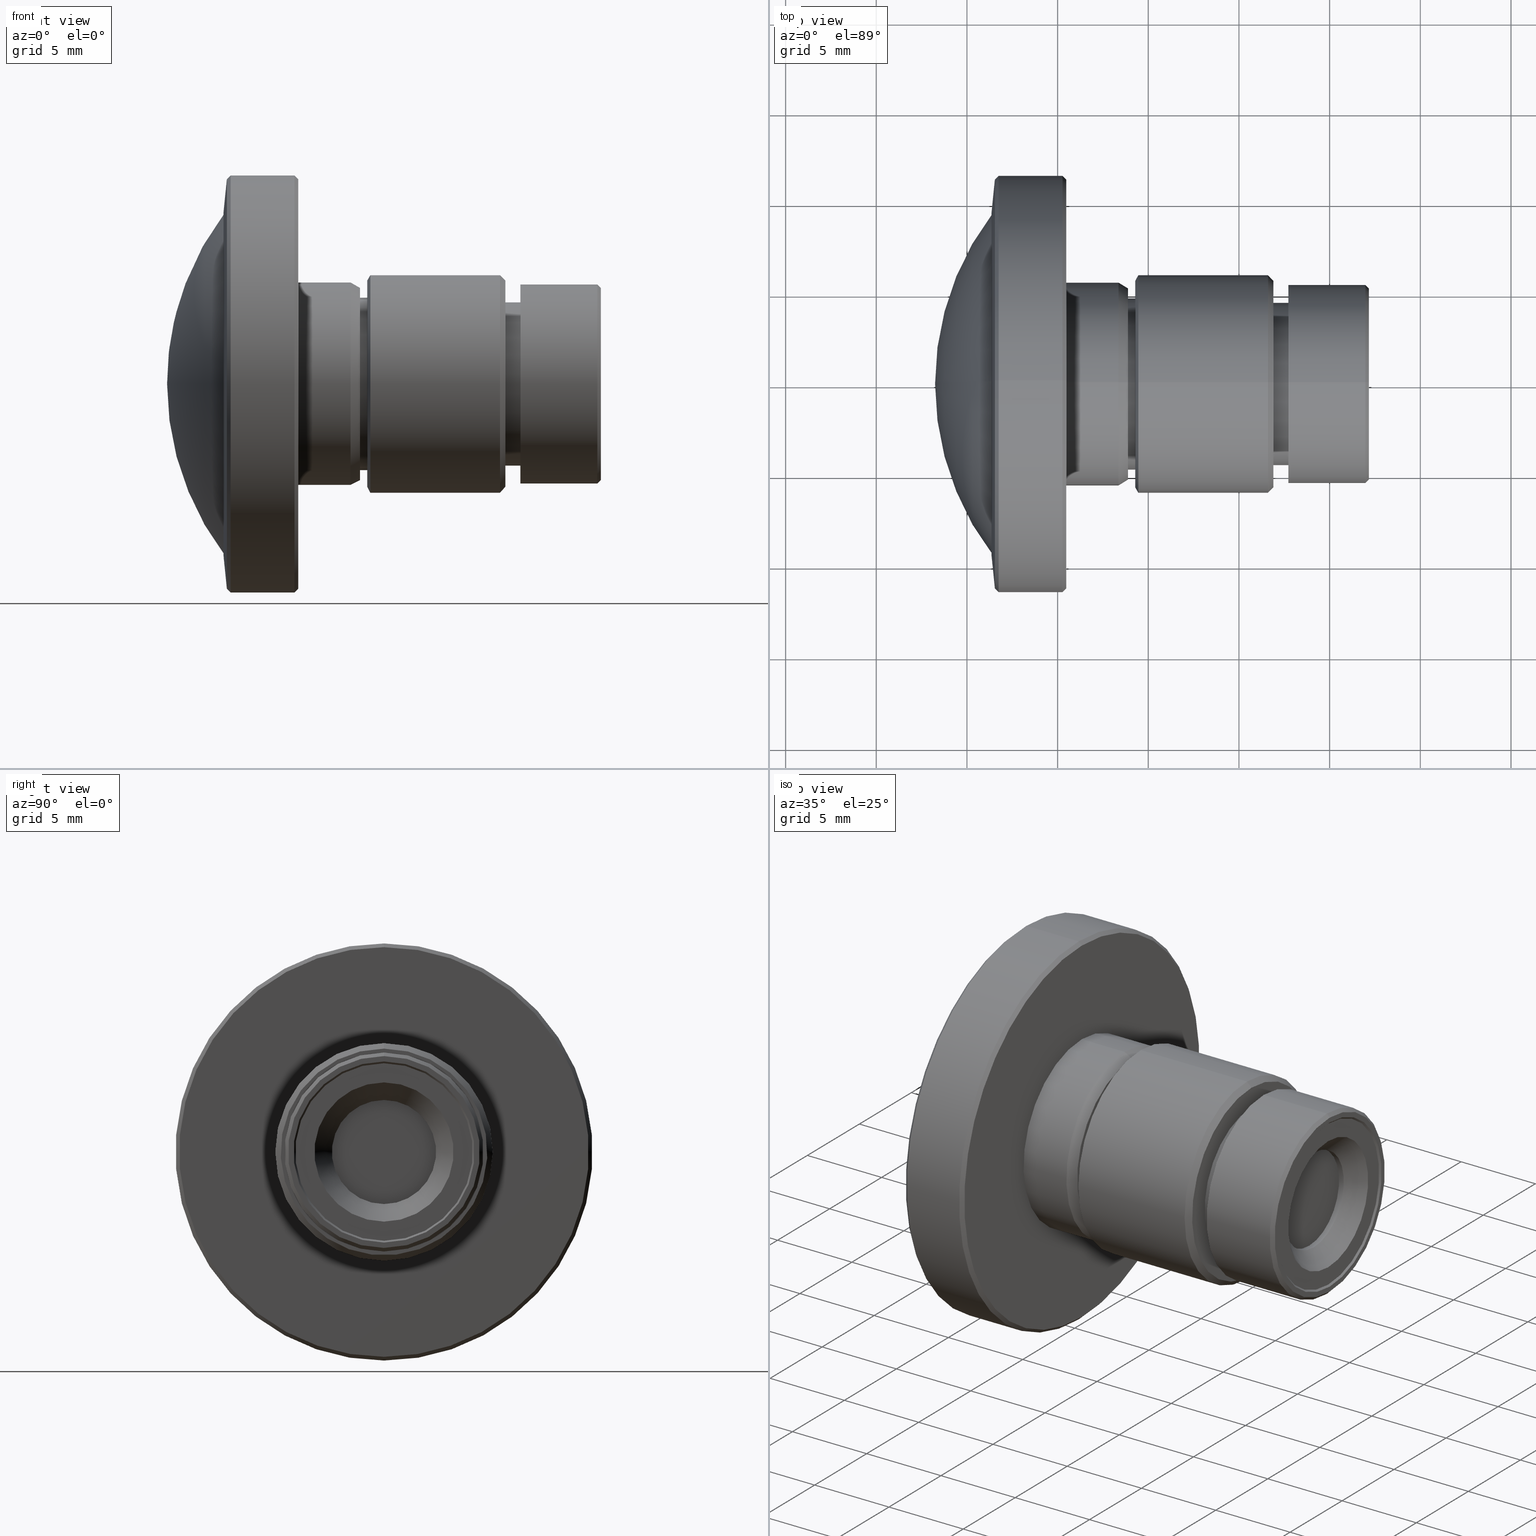
[diagram: canonical four-view strip — front | top / right | iso, engineering-drawing reading convention]
A machine part, canonical four-view strip (front | top / right | iso — engineering-drawing reading convention). The complete STEP part file that produces these views, byte-faithful:
ISO-10303-21;
HEADER;
/* Generated by software containing ST-Developer
 * from STEP Tools, Inc. (www.steptools.com) 
 */
/* OPTION: strings as raw bytes, not using required /X/ escapes */

FILE_DESCRIPTION(
/* description */ ('Unknown'),
/* implementation_level */ '2;1');

FILE_NAME(
/* name */ 'E1628KF3RY_20210604',
/* time_stamp */ '2021-06-04T10:56:13+09:00',
/* author */ ('Unknown'),
/* organization */ ('Unknown'),
/* preprocessor_version */ 'ST-DEVELOPER v16.7',
/* originating_system */ 'DEX',
/* authorisation */ $);

FILE_SCHEMA (('AUTOMOTIVE_DESIGN {1 0 10303 214 3 1 1}'));
ENDSEC;

DATA;
#10=PROPERTY_DEFINITION_REPRESENTATION(#14,#12);
#11=PROPERTY_DEFINITION_REPRESENTATION(#15,#13);
#12=REPRESENTATION('',(#16),#719);
#13=REPRESENTATION('',(#17),#719);
#14=PROPERTY_DEFINITION('pmi validation property','',#724);
#15=PROPERTY_DEFINITION('pmi validation property','',#724);
#16=VALUE_REPRESENTATION_ITEM('number of annotations',COUNT_MEASURE(0.));
#17=VALUE_REPRESENTATION_ITEM('number of views',COUNT_MEASURE(0.));
#18=SHAPE_REPRESENTATION_RELATIONSHIP('','',#484,#19);
#19=ADVANCED_BREP_SHAPE_REPRESENTATION('',(#482),#719);
#20=CONICAL_SURFACE('',#498,4.89479075012357,0.785398163397365);
#21=CONICAL_SURFACE('',#502,5.28954075012367,0.785398163397466);
#22=CONICAL_SURFACE('',#512,5.70000000000002,0.785398163397506);
#23=CONICAL_SURFACE('',#516,6.00000000000003,1.04719755119669);
#24=CONICAL_SURFACE('',#524,5.30000000000001,0.523598775598295);
#25=CONICAL_SURFACE('',#530,11.2942484089188,0.785398163397566);
#26=CONICAL_SURFACE('',#534,11.5,0.785398163397498);
#27=CONICAL_SURFACE('',#536,11.2889273170655,1.46995995139877);
#28=DEGENERATE_TOROIDAL_SURFACE('',#494,532.216418151621,760.123939058977,
 .F.);
#29=PLANE('',#490);
#30=PLANE('',#496);
#31=PLANE('',#500);
#32=PLANE('',#506);
#33=PLANE('',#510);
#34=PLANE('',#518);
#35=PLANE('',#522);
#36=PLANE('',#528);
#37=SPHERICAL_SURFACE('',#489,15.597);
#38=ORIENTED_EDGE('',*,*,#88,.F.);
#39=ORIENTED_EDGE('',*,*,#89,.T.);
#40=ORIENTED_EDGE('',*,*,#88,.T.);
#41=ORIENTED_EDGE('',*,*,#90,.F.);
#42=ORIENTED_EDGE('',*,*,#91,.F.);
#43=ORIENTED_EDGE('',*,*,#90,.T.);
#44=ORIENTED_EDGE('',*,*,#92,.F.);
#45=ORIENTED_EDGE('',*,*,#91,.T.);
#46=ORIENTED_EDGE('',*,*,#93,.F.);
#47=ORIENTED_EDGE('',*,*,#92,.T.);
#48=ORIENTED_EDGE('',*,*,#94,.F.);
#49=ORIENTED_EDGE('',*,*,#93,.T.);
#50=ORIENTED_EDGE('',*,*,#95,.F.);
#51=ORIENTED_EDGE('',*,*,#94,.T.);
#52=ORIENTED_EDGE('',*,*,#96,.F.);
#53=ORIENTED_EDGE('',*,*,#95,.T.);
#54=ORIENTED_EDGE('',*,*,#97,.F.);
#55=ORIENTED_EDGE('',*,*,#96,.T.);
#56=ORIENTED_EDGE('',*,*,#98,.F.);
#57=ORIENTED_EDGE('',*,*,#97,.T.);
#58=ORIENTED_EDGE('',*,*,#99,.F.);
#59=ORIENTED_EDGE('',*,*,#98,.T.);
#60=ORIENTED_EDGE('',*,*,#100,.F.);
#61=ORIENTED_EDGE('',*,*,#99,.T.);
#62=ORIENTED_EDGE('',*,*,#101,.F.);
#63=ORIENTED_EDGE('',*,*,#100,.T.);
#64=ORIENTED_EDGE('',*,*,#102,.F.);
#65=ORIENTED_EDGE('',*,*,#101,.T.);
#66=ORIENTED_EDGE('',*,*,#103,.F.);
#67=ORIENTED_EDGE('',*,*,#102,.T.);
#68=ORIENTED_EDGE('',*,*,#104,.F.);
#69=ORIENTED_EDGE('',*,*,#103,.T.);
#70=ORIENTED_EDGE('',*,*,#105,.F.);
#71=ORIENTED_EDGE('',*,*,#104,.T.);
#72=ORIENTED_EDGE('',*,*,#106,.F.);
#73=ORIENTED_EDGE('',*,*,#105,.T.);
#74=ORIENTED_EDGE('',*,*,#107,.F.);
#75=ORIENTED_EDGE('',*,*,#106,.T.);
#76=ORIENTED_EDGE('',*,*,#108,.F.);
#77=ORIENTED_EDGE('',*,*,#107,.T.);
#78=ORIENTED_EDGE('',*,*,#109,.F.);
#79=ORIENTED_EDGE('',*,*,#108,.T.);
#80=ORIENTED_EDGE('',*,*,#110,.F.);
#81=ORIENTED_EDGE('',*,*,#109,.T.);
#82=ORIENTED_EDGE('',*,*,#111,.F.);
#83=ORIENTED_EDGE('',*,*,#110,.T.);
#84=ORIENTED_EDGE('',*,*,#112,.F.);
#85=ORIENTED_EDGE('',*,*,#111,.T.);
#86=ORIENTED_EDGE('',*,*,#89,.F.);
#87=ORIENTED_EDGE('',*,*,#112,.T.);
#88=EDGE_CURVE('',#113,#113,#138,.T.);
#89=EDGE_CURVE('',#114,#114,#139,.T.);
#90=EDGE_CURVE('',#115,#115,#140,.T.);
#91=EDGE_CURVE('',#116,#116,#141,.T.);
#92=EDGE_CURVE('',#117,#117,#142,.T.);
#93=EDGE_CURVE('',#118,#118,#143,.T.);
#94=EDGE_CURVE('',#119,#119,#144,.T.);
#95=EDGE_CURVE('',#120,#120,#145,.T.);
#96=EDGE_CURVE('',#121,#121,#146,.T.);
#97=EDGE_CURVE('',#122,#122,#147,.T.);
#98=EDGE_CURVE('',#123,#123,#148,.T.);
#99=EDGE_CURVE('',#124,#124,#149,.T.);
#100=EDGE_CURVE('',#125,#125,#150,.T.);
#101=EDGE_CURVE('',#126,#126,#151,.T.);
#102=EDGE_CURVE('',#127,#127,#152,.T.);
#103=EDGE_CURVE('',#128,#128,#153,.T.);
#104=EDGE_CURVE('',#129,#129,#154,.T.);
#105=EDGE_CURVE('',#130,#130,#155,.T.);
#106=EDGE_CURVE('',#131,#131,#156,.T.);
#107=EDGE_CURVE('',#132,#132,#157,.T.);
#108=EDGE_CURVE('',#133,#133,#158,.T.);
#109=EDGE_CURVE('',#134,#134,#159,.T.);
#110=EDGE_CURVE('',#135,#135,#160,.T.);
#111=EDGE_CURVE('',#136,#136,#161,.T.);
#112=EDGE_CURVE('',#137,#137,#162,.T.);
#113=VERTEX_POINT('',#644);
#114=VERTEX_POINT('',#646);
#115=VERTEX_POINT('',#650);
#116=VERTEX_POINT('',#653);
#117=VERTEX_POINT('',#656);
#118=VERTEX_POINT('',#659);
#119=VERTEX_POINT('',#662);
#120=VERTEX_POINT('',#665);
#121=VERTEX_POINT('',#668);
#122=VERTEX_POINT('',#671);
#123=VERTEX_POINT('',#674);
#124=VERTEX_POINT('',#677);
#125=VERTEX_POINT('',#680);
#126=VERTEX_POINT('',#683);
#127=VERTEX_POINT('',#686);
#128=VERTEX_POINT('',#689);
#129=VERTEX_POINT('',#692);
#130=VERTEX_POINT('',#695);
#131=VERTEX_POINT('',#698);
#132=VERTEX_POINT('',#701);
#133=VERTEX_POINT('',#704);
#134=VERTEX_POINT('',#707);
#135=VERTEX_POINT('',#710);
#136=VERTEX_POINT('',#713);
#137=VERTEX_POINT('',#716);
#138=CIRCLE('',#487,9.45000000000003);
#139=CIRCLE('',#488,9.45000000000003);
#140=CIRCLE('',#491,2.87169700012366);
#141=CIRCLE('',#493,2.87169700012366);
#142=CIRCLE('',#495,3.83800986708638);
#143=CIRCLE('',#497,4.89479075012357);
#144=CIRCLE('',#499,4.99347825012363);
#145=CIRCLE('',#501,5.28954075012367);
#146=CIRCLE('',#503,5.48691575012368);
#147=CIRCLE('',#505,5.48691575012368);
#148=CIRCLE('',#507,4.49999999999999);
#149=CIRCLE('',#509,4.49999999999999);
#150=CIRCLE('',#511,5.70000000000002);
#151=CIRCLE('',#513,6.00000000000002);
#152=CIRCLE('',#515,6.00000000000003);
#153=CIRCLE('',#517,5.70000000000002);
#154=CIRCLE('',#519,4.74999999999999);
#155=CIRCLE('',#521,4.75);
#156=CIRCLE('',#523,5.30000000000001);
#157=CIRCLE('',#525,5.60000000000001);
#158=CIRCLE('',#527,5.60000000000001);
#159=CIRCLE('',#529,11.2942484089188);
#160=CIRCLE('',#531,11.5);
#161=CIRCLE('',#533,11.5);
#162=CIRCLE('',#535,11.2889273170655);
#163=EDGE_LOOP('',(#38));
#164=EDGE_LOOP('',(#39));
#165=EDGE_LOOP('',(#40));
#166=EDGE_LOOP('',(#41));
#167=EDGE_LOOP('',(#42));
#168=EDGE_LOOP('',(#43));
#169=EDGE_LOOP('',(#44));
#170=EDGE_LOOP('',(#45));
#171=EDGE_LOOP('',(#46));
#172=EDGE_LOOP('',(#47));
#173=EDGE_LOOP('',(#48));
#174=EDGE_LOOP('',(#49));
#175=EDGE_LOOP('',(#50));
#176=EDGE_LOOP('',(#51));
#177=EDGE_LOOP('',(#52));
#178=EDGE_LOOP('',(#53));
#179=EDGE_LOOP('',(#54));
#180=EDGE_LOOP('',(#55));
#181=EDGE_LOOP('',(#56));
#182=EDGE_LOOP('',(#57));
#183=EDGE_LOOP('',(#58));
#184=EDGE_LOOP('',(#59));
#185=EDGE_LOOP('',(#60));
#186=EDGE_LOOP('',(#61));
#187=EDGE_LOOP('',(#62));
#188=EDGE_LOOP('',(#63));
#189=EDGE_LOOP('',(#64));
#190=EDGE_LOOP('',(#65));
#191=EDGE_LOOP('',(#66));
#192=EDGE_LOOP('',(#67));
#193=EDGE_LOOP('',(#68));
#194=EDGE_LOOP('',(#69));
#195=EDGE_LOOP('',(#70));
#196=EDGE_LOOP('',(#71));
#197=EDGE_LOOP('',(#72));
#198=EDGE_LOOP('',(#73));
#199=EDGE_LOOP('',(#74));
#200=EDGE_LOOP('',(#75));
#201=EDGE_LOOP('',(#76));
#202=EDGE_LOOP('',(#77));
#203=EDGE_LOOP('',(#78));
#204=EDGE_LOOP('',(#79));
#205=EDGE_LOOP('',(#80));
#206=EDGE_LOOP('',(#81));
#207=EDGE_LOOP('',(#82));
#208=EDGE_LOOP('',(#83));
#209=EDGE_LOOP('',(#84));
#210=EDGE_LOOP('',(#85));
#211=EDGE_LOOP('',(#86));
#212=EDGE_LOOP('',(#87));
#213=FACE_BOUND('',#163,.T.);
#214=FACE_BOUND('',#164,.T.);
#215=FACE_BOUND('',#165,.T.);
#216=FACE_BOUND('',#166,.T.);
#217=FACE_BOUND('',#167,.T.);
#218=FACE_BOUND('',#168,.T.);
#219=FACE_BOUND('',#169,.T.);
#220=FACE_BOUND('',#170,.T.);
#221=FACE_BOUND('',#171,.T.);
#222=FACE_BOUND('',#172,.T.);
#223=FACE_BOUND('',#173,.T.);
#224=FACE_BOUND('',#174,.T.);
#225=FACE_BOUND('',#175,.T.);
#226=FACE_BOUND('',#176,.T.);
#227=FACE_BOUND('',#177,.T.);
#228=FACE_BOUND('',#178,.T.);
#229=FACE_BOUND('',#179,.T.);
#230=FACE_BOUND('',#180,.T.);
#231=FACE_BOUND('',#181,.T.);
#232=FACE_BOUND('',#182,.T.);
#233=FACE_BOUND('',#183,.T.);
#234=FACE_BOUND('',#184,.T.);
#235=FACE_BOUND('',#185,.T.);
#236=FACE_BOUND('',#186,.T.);
#237=FACE_BOUND('',#187,.T.);
#238=FACE_BOUND('',#188,.T.);
#239=FACE_BOUND('',#189,.T.);
#240=FACE_BOUND('',#190,.T.);
#241=FACE_BOUND('',#191,.T.);
#242=FACE_BOUND('',#192,.T.);
#243=FACE_BOUND('',#193,.T.);
#244=FACE_BOUND('',#194,.T.);
#245=FACE_BOUND('',#195,.T.);
#246=FACE_BOUND('',#196,.T.);
#247=FACE_BOUND('',#197,.T.);
#248=FACE_BOUND('',#198,.T.);
#249=FACE_BOUND('',#199,.T.);
#250=FACE_BOUND('',#200,.T.);
#251=FACE_BOUND('',#201,.T.);
#252=FACE_BOUND('',#202,.T.);
#253=FACE_BOUND('',#203,.T.);
#254=FACE_BOUND('',#204,.T.);
#255=FACE_BOUND('',#205,.T.);
#256=FACE_BOUND('',#206,.T.);
#257=FACE_BOUND('',#207,.T.);
#258=FACE_BOUND('',#208,.T.);
#259=FACE_BOUND('',#209,.T.);
#260=FACE_BOUND('',#210,.T.);
#261=FACE_BOUND('',#211,.T.);
#262=FACE_BOUND('',#212,.T.);
#263=CYLINDRICAL_SURFACE('',#486,9.45000000000003);
#264=CYLINDRICAL_SURFACE('',#492,2.87169700012366);
#265=CYLINDRICAL_SURFACE('',#504,5.48691575012368);
#266=CYLINDRICAL_SURFACE('',#508,4.49999999999999);
#267=CYLINDRICAL_SURFACE('',#514,6.00000000000003);
#268=CYLINDRICAL_SURFACE('',#520,4.75);
#269=CYLINDRICAL_SURFACE('',#526,5.60000000000001);
#270=CYLINDRICAL_SURFACE('',#532,11.5);
#271=STYLED_ITEM('',(#297),#455);
#272=STYLED_ITEM('',(#298),#456);
#273=STYLED_ITEM('',(#299),#457);
#274=STYLED_ITEM('',(#300),#458);
#275=STYLED_ITEM('',(#301),#459);
#276=STYLED_ITEM('',(#302),#460);
#277=STYLED_ITEM('',(#303),#461);
#278=STYLED_ITEM('',(#304),#462);
#279=STYLED_ITEM('',(#305),#463);
#280=STYLED_ITEM('',(#306),#464);
#281=STYLED_ITEM('',(#307),#465);
#282=STYLED_ITEM('',(#308),#466);
#283=STYLED_ITEM('',(#309),#467);
#284=STYLED_ITEM('',(#310),#468);
#285=STYLED_ITEM('',(#311),#469);
#286=STYLED_ITEM('',(#312),#470);
#287=STYLED_ITEM('',(#313),#471);
#288=STYLED_ITEM('',(#314),#472);
#289=STYLED_ITEM('',(#315),#473);
#290=STYLED_ITEM('',(#316),#474);
#291=STYLED_ITEM('',(#317),#475);
#292=STYLED_ITEM('',(#318),#476);
#293=STYLED_ITEM('',(#319),#477);
#294=STYLED_ITEM('',(#320),#478);
#295=STYLED_ITEM('',(#321),#479);
#296=STYLED_ITEM('',(#322),#480);
#297=PRESENTATION_STYLE_ASSIGNMENT((#323));
#298=PRESENTATION_STYLE_ASSIGNMENT((#324));
#299=PRESENTATION_STYLE_ASSIGNMENT((#325));
#300=PRESENTATION_STYLE_ASSIGNMENT((#326));
#301=PRESENTATION_STYLE_ASSIGNMENT((#327));
#302=PRESENTATION_STYLE_ASSIGNMENT((#328));
#303=PRESENTATION_STYLE_ASSIGNMENT((#329));
#304=PRESENTATION_STYLE_ASSIGNMENT((#330));
#305=PRESENTATION_STYLE_ASSIGNMENT((#331));
#306=PRESENTATION_STYLE_ASSIGNMENT((#332));
#307=PRESENTATION_STYLE_ASSIGNMENT((#333));
#308=PRESENTATION_STYLE_ASSIGNMENT((#334));
#309=PRESENTATION_STYLE_ASSIGNMENT((#335));
#310=PRESENTATION_STYLE_ASSIGNMENT((#336));
#311=PRESENTATION_STYLE_ASSIGNMENT((#337));
#312=PRESENTATION_STYLE_ASSIGNMENT((#338));
#313=PRESENTATION_STYLE_ASSIGNMENT((#339));
#314=PRESENTATION_STYLE_ASSIGNMENT((#340));
#315=PRESENTATION_STYLE_ASSIGNMENT((#341));
#316=PRESENTATION_STYLE_ASSIGNMENT((#342));
#317=PRESENTATION_STYLE_ASSIGNMENT((#343));
#318=PRESENTATION_STYLE_ASSIGNMENT((#344));
#319=PRESENTATION_STYLE_ASSIGNMENT((#345));
#320=PRESENTATION_STYLE_ASSIGNMENT((#346));
#321=PRESENTATION_STYLE_ASSIGNMENT((#347));
#322=PRESENTATION_STYLE_ASSIGNMENT((#348));
#323=SURFACE_STYLE_USAGE(.BOTH.,#349);
#324=SURFACE_STYLE_USAGE(.BOTH.,#350);
#325=SURFACE_STYLE_USAGE(.BOTH.,#351);
#326=SURFACE_STYLE_USAGE(.BOTH.,#352);
#327=SURFACE_STYLE_USAGE(.BOTH.,#353);
#328=SURFACE_STYLE_USAGE(.BOTH.,#354);
#329=SURFACE_STYLE_USAGE(.BOTH.,#355);
#330=SURFACE_STYLE_USAGE(.BOTH.,#356);
#331=SURFACE_STYLE_USAGE(.BOTH.,#357);
#332=SURFACE_STYLE_USAGE(.BOTH.,#358);
#333=SURFACE_STYLE_USAGE(.BOTH.,#359);
#334=SURFACE_STYLE_USAGE(.BOTH.,#360);
#335=SURFACE_STYLE_USAGE(.BOTH.,#361);
#336=SURFACE_STYLE_USAGE(.BOTH.,#362);
#337=SURFACE_STYLE_USAGE(.BOTH.,#363);
#338=SURFACE_STYLE_USAGE(.BOTH.,#364);
#339=SURFACE_STYLE_USAGE(.BOTH.,#365);
#340=SURFACE_STYLE_USAGE(.BOTH.,#366);
#341=SURFACE_STYLE_USAGE(.BOTH.,#367);
#342=SURFACE_STYLE_USAGE(.BOTH.,#368);
#343=SURFACE_STYLE_USAGE(.BOTH.,#369);
#344=SURFACE_STYLE_USAGE(.BOTH.,#370);
#345=SURFACE_STYLE_USAGE(.BOTH.,#371);
#346=SURFACE_STYLE_USAGE(.BOTH.,#372);
#347=SURFACE_STYLE_USAGE(.BOTH.,#373);
#348=SURFACE_STYLE_USAGE(.BOTH.,#374);
#349=SURFACE_SIDE_STYLE('',(#375));
#350=SURFACE_SIDE_STYLE('',(#376));
#351=SURFACE_SIDE_STYLE('',(#377));
#352=SURFACE_SIDE_STYLE('',(#378));
#353=SURFACE_SIDE_STYLE('',(#379));
#354=SURFACE_SIDE_STYLE('',(#380));
#355=SURFACE_SIDE_STYLE('',(#381));
#356=SURFACE_SIDE_STYLE('',(#382));
#357=SURFACE_SIDE_STYLE('',(#383));
#358=SURFACE_SIDE_STYLE('',(#384));
#359=SURFACE_SIDE_STYLE('',(#385));
#360=SURFACE_SIDE_STYLE('',(#386));
#361=SURFACE_SIDE_STYLE('',(#387));
#362=SURFACE_SIDE_STYLE('',(#388));
#363=SURFACE_SIDE_STYLE('',(#389));
#364=SURFACE_SIDE_STYLE('',(#390));
#365=SURFACE_SIDE_STYLE('',(#391));
#366=SURFACE_SIDE_STYLE('',(#392));
#367=SURFACE_SIDE_STYLE('',(#393));
#368=SURFACE_SIDE_STYLE('',(#394));
#369=SURFACE_SIDE_STYLE('',(#395));
#370=SURFACE_SIDE_STYLE('',(#396));
#371=SURFACE_SIDE_STYLE('',(#397));
#372=SURFACE_SIDE_STYLE('',(#398));
#373=SURFACE_SIDE_STYLE('',(#399));
#374=SURFACE_SIDE_STYLE('',(#400));
#375=SURFACE_STYLE_FILL_AREA(#401);
#376=SURFACE_STYLE_FILL_AREA(#402);
#377=SURFACE_STYLE_FILL_AREA(#403);
#378=SURFACE_STYLE_FILL_AREA(#404);
#379=SURFACE_STYLE_FILL_AREA(#405);
#380=SURFACE_STYLE_FILL_AREA(#406);
#381=SURFACE_STYLE_FILL_AREA(#407);
#382=SURFACE_STYLE_FILL_AREA(#408);
#383=SURFACE_STYLE_FILL_AREA(#409);
#384=SURFACE_STYLE_FILL_AREA(#410);
#385=SURFACE_STYLE_FILL_AREA(#411);
#386=SURFACE_STYLE_FILL_AREA(#412);
#387=SURFACE_STYLE_FILL_AREA(#413);
#388=SURFACE_STYLE_FILL_AREA(#414);
#389=SURFACE_STYLE_FILL_AREA(#415);
#390=SURFACE_STYLE_FILL_AREA(#416);
#391=SURFACE_STYLE_FILL_AREA(#417);
#392=SURFACE_STYLE_FILL_AREA(#418);
#393=SURFACE_STYLE_FILL_AREA(#419);
#394=SURFACE_STYLE_FILL_AREA(#420);
#395=SURFACE_STYLE_FILL_AREA(#421);
#396=SURFACE_STYLE_FILL_AREA(#422);
#397=SURFACE_STYLE_FILL_AREA(#423);
#398=SURFACE_STYLE_FILL_AREA(#424);
#399=SURFACE_STYLE_FILL_AREA(#425);
#400=SURFACE_STYLE_FILL_AREA(#426);
#401=FILL_AREA_STYLE('',(#427));
#402=FILL_AREA_STYLE('',(#428));
#403=FILL_AREA_STYLE('',(#429));
#404=FILL_AREA_STYLE('',(#430));
#405=FILL_AREA_STYLE('',(#431));
#406=FILL_AREA_STYLE('',(#432));
#407=FILL_AREA_STYLE('',(#433));
#408=FILL_AREA_STYLE('',(#434));
#409=FILL_AREA_STYLE('',(#435));
#410=FILL_AREA_STYLE('',(#436));
#411=FILL_AREA_STYLE('',(#437));
#412=FILL_AREA_STYLE('',(#438));
#413=FILL_AREA_STYLE('',(#439));
#414=FILL_AREA_STYLE('',(#440));
#415=FILL_AREA_STYLE('',(#441));
#416=FILL_AREA_STYLE('',(#442));
#417=FILL_AREA_STYLE('',(#443));
#418=FILL_AREA_STYLE('',(#444));
#419=FILL_AREA_STYLE('',(#445));
#420=FILL_AREA_STYLE('',(#446));
#421=FILL_AREA_STYLE('',(#447));
#422=FILL_AREA_STYLE('',(#448));
#423=FILL_AREA_STYLE('',(#449));
#424=FILL_AREA_STYLE('',(#450));
#425=FILL_AREA_STYLE('',(#451));
#426=FILL_AREA_STYLE('',(#452));
#427=FILL_AREA_STYLE_COLOUR('',#453);
#428=FILL_AREA_STYLE_COLOUR('',#454);
#429=FILL_AREA_STYLE_COLOUR('',#454);
#430=FILL_AREA_STYLE_COLOUR('',#453);
#431=FILL_AREA_STYLE_COLOUR('',#453);
#432=FILL_AREA_STYLE_COLOUR('',#453);
#433=FILL_AREA_STYLE_COLOUR('',#453);
#434=FILL_AREA_STYLE_COLOUR('',#453);
#435=FILL_AREA_STYLE_COLOUR('',#453);
#436=FILL_AREA_STYLE_COLOUR('',#453);
#437=FILL_AREA_STYLE_COLOUR('',#453);
#438=FILL_AREA_STYLE_COLOUR('',#453);
#439=FILL_AREA_STYLE_COLOUR('',#453);
#440=FILL_AREA_STYLE_COLOUR('',#453);
#441=FILL_AREA_STYLE_COLOUR('',#453);
#442=FILL_AREA_STYLE_COLOUR('',#453);
#443=FILL_AREA_STYLE_COLOUR('',#453);
#444=FILL_AREA_STYLE_COLOUR('',#453);
#445=FILL_AREA_STYLE_COLOUR('',#453);
#446=FILL_AREA_STYLE_COLOUR('',#453);
#447=FILL_AREA_STYLE_COLOUR('',#453);
#448=FILL_AREA_STYLE_COLOUR('',#453);
#449=FILL_AREA_STYLE_COLOUR('',#453);
#450=FILL_AREA_STYLE_COLOUR('',#453);
#451=FILL_AREA_STYLE_COLOUR('',#453);
#452=FILL_AREA_STYLE_COLOUR('',#453);
#453=COLOUR_RGB('',0.200000002980232,0.200000002980232,0.200000002980232);
#454=COLOUR_RGB('',0.39215686917305,0.600000023841858,0.39215686917305);
#455=ADVANCED_FACE('',(#213,#214),#263,.F.);
#456=ADVANCED_FACE('',(#215),#37,.T.);
#457=ADVANCED_FACE('',(#216),#29,.F.);
#458=ADVANCED_FACE('',(#217,#218),#264,.F.);
#459=ADVANCED_FACE('',(#219,#220),#28,.T.);
#460=ADVANCED_FACE('',(#221,#222),#30,.F.);
#461=ADVANCED_FACE('',(#223,#224),#20,.F.);
#462=ADVANCED_FACE('',(#225,#226),#31,.F.);
#463=ADVANCED_FACE('',(#227,#228),#21,.T.);
#464=ADVANCED_FACE('',(#229,#230),#265,.T.);
#465=ADVANCED_FACE('',(#231,#232),#32,.F.);
#466=ADVANCED_FACE('',(#233,#234),#266,.T.);
#467=ADVANCED_FACE('',(#235,#236),#33,.F.);
#468=ADVANCED_FACE('',(#237,#238),#22,.T.);
#469=ADVANCED_FACE('',(#239,#240),#267,.T.);
#470=ADVANCED_FACE('',(#241,#242),#23,.T.);
#471=ADVANCED_FACE('',(#243,#244),#34,.F.);
#472=ADVANCED_FACE('',(#245,#246),#268,.T.);
#473=ADVANCED_FACE('',(#247,#248),#35,.F.);
#474=ADVANCED_FACE('',(#249,#250),#24,.T.);
#475=ADVANCED_FACE('',(#251,#252),#269,.T.);
#476=ADVANCED_FACE('',(#253,#254),#36,.F.);
#477=ADVANCED_FACE('',(#255,#256),#25,.T.);
#478=ADVANCED_FACE('',(#257,#258),#270,.T.);
#479=ADVANCED_FACE('',(#259,#260),#26,.T.);
#480=ADVANCED_FACE('',(#261,#262),#27,.T.);
#481=CLOSED_SHELL('',(#455,#456,#457,#458,#459,#460,#461,#462,#463,#464,
#465,#466,#467,#468,#469,#470,#471,#472,#473,#474,#475,#476,#477,#478,#479,
#480));
#482=MANIFOLD_SOLID_BREP('',#481);
#483=SHAPE_DEFINITION_REPRESENTATION(#724,#484);
#484=SHAPE_REPRESENTATION('TLB-2000-IRCF_20210604',(#485),#719);
#485=AXIS2_PLACEMENT_3D('',#641,#537,#538);
#486=AXIS2_PLACEMENT_3D('',#642,#539,#540);
#487=AXIS2_PLACEMENT_3D('',#643,#541,#542);
#488=AXIS2_PLACEMENT_3D('',#645,#543,#544);
#489=AXIS2_PLACEMENT_3D('',#647,#545,#546);
#490=AXIS2_PLACEMENT_3D('',#648,#547,#548);
#491=AXIS2_PLACEMENT_3D('',#649,#549,#550);
#492=AXIS2_PLACEMENT_3D('',#651,#551,#552);
#493=AXIS2_PLACEMENT_3D('',#652,#553,#554);
#494=AXIS2_PLACEMENT_3D('',#654,#555,#556);
#495=AXIS2_PLACEMENT_3D('',#655,#557,#558);
#496=AXIS2_PLACEMENT_3D('',#657,#559,#560);
#497=AXIS2_PLACEMENT_3D('',#658,#561,#562);
#498=AXIS2_PLACEMENT_3D('',#660,#563,#564);
#499=AXIS2_PLACEMENT_3D('',#661,#565,#566);
#500=AXIS2_PLACEMENT_3D('',#663,#567,#568);
#501=AXIS2_PLACEMENT_3D('',#664,#569,#570);
#502=AXIS2_PLACEMENT_3D('',#666,#571,#572);
#503=AXIS2_PLACEMENT_3D('',#667,#573,#574);
#504=AXIS2_PLACEMENT_3D('',#669,#575,#576);
#505=AXIS2_PLACEMENT_3D('',#670,#577,#578);
#506=AXIS2_PLACEMENT_3D('',#672,#579,#580);
#507=AXIS2_PLACEMENT_3D('',#673,#581,#582);
#508=AXIS2_PLACEMENT_3D('',#675,#583,#584);
#509=AXIS2_PLACEMENT_3D('',#676,#585,#586);
#510=AXIS2_PLACEMENT_3D('',#678,#587,#588);
#511=AXIS2_PLACEMENT_3D('',#679,#589,#590);
#512=AXIS2_PLACEMENT_3D('',#681,#591,#592);
#513=AXIS2_PLACEMENT_3D('',#682,#593,#594);
#514=AXIS2_PLACEMENT_3D('',#684,#595,#596);
#515=AXIS2_PLACEMENT_3D('',#685,#597,#598);
#516=AXIS2_PLACEMENT_3D('',#687,#599,#600);
#517=AXIS2_PLACEMENT_3D('',#688,#601,#602);
#518=AXIS2_PLACEMENT_3D('',#690,#603,#604);
#519=AXIS2_PLACEMENT_3D('',#691,#605,#606);
#520=AXIS2_PLACEMENT_3D('',#693,#607,#608);
#521=AXIS2_PLACEMENT_3D('',#694,#609,#610);
#522=AXIS2_PLACEMENT_3D('',#696,#611,#612);
#523=AXIS2_PLACEMENT_3D('',#697,#613,#614);
#524=AXIS2_PLACEMENT_3D('',#699,#615,#616);
#525=AXIS2_PLACEMENT_3D('',#700,#617,#618);
#526=AXIS2_PLACEMENT_3D('',#702,#619,#620);
#527=AXIS2_PLACEMENT_3D('',#703,#621,#622);
#528=AXIS2_PLACEMENT_3D('',#705,#623,#624);
#529=AXIS2_PLACEMENT_3D('',#706,#625,#626);
#530=AXIS2_PLACEMENT_3D('',#708,#627,#628);
#531=AXIS2_PLACEMENT_3D('',#709,#629,#630);
#532=AXIS2_PLACEMENT_3D('',#711,#631,#632);
#533=AXIS2_PLACEMENT_3D('',#712,#633,#634);
#534=AXIS2_PLACEMENT_3D('',#714,#635,#636);
#535=AXIS2_PLACEMENT_3D('',#715,#637,#638);
#536=AXIS2_PLACEMENT_3D('',#717,#639,#640);
#537=DIRECTION('',(0.,0.,1.));
#538=DIRECTION('',(1.,0.,0.));
#539=DIRECTION('',(-1.,0.,0.));
#540=DIRECTION('',(0.,0.,1.));
#541=DIRECTION('',(-1.,0.,0.));
#542=DIRECTION('',(0.,0.,1.));
#543=DIRECTION('',(-1.,0.,0.));
#544=DIRECTION('',(0.,0.,1.));
#545=DIRECTION('',(-1.,0.,0.));
#546=DIRECTION('',(0.,0.,1.));
#547=DIRECTION('',(-1.,0.,0.));
#548=DIRECTION('',(0.,0.,1.));
#549=DIRECTION('',(-1.,0.,0.));
#550=DIRECTION('',(0.,0.,1.));
#551=DIRECTION('',(-1.,0.,0.));
#552=DIRECTION('',(0.,0.,1.));
#553=DIRECTION('',(-1.,0.,0.));
#554=DIRECTION('',(0.,0.,1.));
#555=DIRECTION('',(-1.,0.,0.));
#556=DIRECTION('',(0.,0.,1.));
#557=DIRECTION('',(-1.,0.,0.));
#558=DIRECTION('',(0.,0.,1.));
#559=DIRECTION('',(-1.,0.,0.));
#560=DIRECTION('',(0.,0.,1.));
#561=DIRECTION('',(-1.,0.,0.));
#562=DIRECTION('',(0.,0.,1.));
#563=DIRECTION('',(1.,0.,0.));
#564=DIRECTION('',(0.,0.,-1.));
#565=DIRECTION('',(-1.,0.,0.));
#566=DIRECTION('',(0.,0.,1.));
#567=DIRECTION('',(-1.,0.,0.));
#568=DIRECTION('',(0.,0.,1.));
#569=DIRECTION('',(-1.,0.,0.));
#570=DIRECTION('',(0.,0.,1.));
#571=DIRECTION('',(-1.,0.,0.));
#572=DIRECTION('',(0.,0.,1.));
#573=DIRECTION('',(-1.,0.,0.));
#574=DIRECTION('',(0.,0.,1.));
#575=DIRECTION('',(-1.,0.,0.));
#576=DIRECTION('',(0.,0.,1.));
#577=DIRECTION('',(-1.,0.,0.));
#578=DIRECTION('',(0.,0.,1.));
#579=DIRECTION('',(1.,0.,0.));
#580=DIRECTION('',(0.,0.,-1.));
#581=DIRECTION('',(-1.,0.,0.));
#582=DIRECTION('',(0.,0.,1.));
#583=DIRECTION('',(-1.,0.,0.));
#584=DIRECTION('',(0.,0.,1.));
#585=DIRECTION('',(-1.,0.,0.));
#586=DIRECTION('',(0.,0.,1.));
#587=DIRECTION('',(-1.,0.,0.));
#588=DIRECTION('',(0.,0.,1.));
#589=DIRECTION('',(-1.,0.,0.));
#590=DIRECTION('',(0.,0.,1.));
#591=DIRECTION('',(-1.,0.,0.));
#592=DIRECTION('',(0.,0.,1.));
#593=DIRECTION('',(-1.,0.,0.));
#594=DIRECTION('',(0.,0.,1.));
#595=DIRECTION('',(-1.,0.,0.));
#596=DIRECTION('',(0.,0.,1.));
#597=DIRECTION('',(-1.,0.,0.));
#598=DIRECTION('',(0.,0.,1.));
#599=DIRECTION('',(1.,0.,0.));
#600=DIRECTION('',(0.,0.,-1.));
#601=DIRECTION('',(-1.,0.,0.));
#602=DIRECTION('',(0.,0.,1.));
#603=DIRECTION('',(1.,0.,0.));
#604=DIRECTION('',(0.,0.,-1.));
#605=DIRECTION('',(-1.,0.,0.));
#606=DIRECTION('',(0.,0.,1.));
#607=DIRECTION('',(-1.,0.,0.));
#608=DIRECTION('',(0.,0.,1.));
#609=DIRECTION('',(-1.,0.,0.));
#610=DIRECTION('',(0.,0.,1.));
#611=DIRECTION('',(-1.,0.,0.));
#612=DIRECTION('',(0.,0.,1.));
#613=DIRECTION('',(-1.,0.,0.));
#614=DIRECTION('',(0.,0.,1.));
#615=DIRECTION('',(-1.,0.,0.));
#616=DIRECTION('',(0.,0.,1.));
#617=DIRECTION('',(-1.,0.,0.));
#618=DIRECTION('',(0.,0.,1.));
#619=DIRECTION('',(-1.,0.,0.));
#620=DIRECTION('',(0.,0.,1.));
#621=DIRECTION('',(-1.,0.,0.));
#622=DIRECTION('',(0.,0.,1.));
#623=DIRECTION('',(-1.,0.,0.));
#624=DIRECTION('',(0.,0.,1.));
#625=DIRECTION('',(-1.,0.,0.));
#626=DIRECTION('',(0.,0.,1.));
#627=DIRECTION('',(-1.,0.,0.));
#628=DIRECTION('',(0.,0.,1.));
#629=DIRECTION('',(-1.,0.,0.));
#630=DIRECTION('',(0.,0.,1.));
#631=DIRECTION('',(-1.,0.,0.));
#632=DIRECTION('',(0.,0.,1.));
#633=DIRECTION('',(-1.,0.,0.));
#634=DIRECTION('',(0.,0.,1.));
#635=DIRECTION('',(1.,0.,0.));
#636=DIRECTION('',(0.,0.,-1.));
#637=DIRECTION('',(-1.,0.,0.));
#638=DIRECTION('',(0.,0.,1.));
#639=DIRECTION('',(1.,0.,0.));
#640=DIRECTION('',(0.,0.,-1.));
#641=CARTESIAN_POINT('',(0.,0.,0.));
#642=CARTESIAN_POINT('',(-60.,0.,0.));
#643=CARTESIAN_POINT('',(-23.5682903184779,0.,0.));
#644=CARTESIAN_POINT('',(-23.5682903184779,0.,9.45000000000003));
#645=CARTESIAN_POINT('',(-23.6467166975532,0.,0.));
#646=CARTESIAN_POINT('',(-23.6467166975532,0.,9.45000000000003));
#647=CARTESIAN_POINT('',(-11.1600709055243,0.,3.46944695195361E-15));
#648=CARTESIAN_POINT('',(-4.21514651050595,0.,0.));
#649=CARTESIAN_POINT('',(-4.21514651050595,0.,0.));
#650=CARTESIAN_POINT('',(-4.21514651050595,0.,2.87169700012366));
#651=CARTESIAN_POINT('',(-60.,0.,0.));
#652=CARTESIAN_POINT('',(-3.89166402444915,0.,0.));
#653=CARTESIAN_POINT('',(-3.89166402444915,0.,2.87169700012366));
#654=CARTESIAN_POINT('',(535.987129552302,0.,0.));
#655=CARTESIAN_POINT('',(-2.93220850495446,0.,0.));
#656=CARTESIAN_POINT('',(-2.93220850495446,0.,3.83800986708638));
#657=CARTESIAN_POINT('',(-2.93220850495433,0.,4.89479075012357));
#658=CARTESIAN_POINT('',(-2.93220850495421,0.,0.));
#659=CARTESIAN_POINT('',(-2.93220850495421,0.,4.89479075012357));
#660=CARTESIAN_POINT('',(-2.93220850495421,0.,0.));
#661=CARTESIAN_POINT('',(-2.83352100495413,0.,0.));
#662=CARTESIAN_POINT('',(-2.83352100495413,0.,4.99347825012363));
#663=CARTESIAN_POINT('',(-2.83352100495413,0.,4.99347825012363));
#664=CARTESIAN_POINT('',(-2.83352100495413,0.,0.));
#665=CARTESIAN_POINT('',(-2.83352100495413,0.,5.28954075012367));
#666=CARTESIAN_POINT('',(-2.83352100495413,0.,0.));
#667=CARTESIAN_POINT('',(-3.03089600495413,0.,0.));
#668=CARTESIAN_POINT('',(-3.03089600495413,0.,5.48691575012368));
#669=CARTESIAN_POINT('',(-60.,0.,0.));
#670=CARTESIAN_POINT('',(-7.27445850495415,0.,0.));
#671=CARTESIAN_POINT('',(-7.27445850495415,0.,5.48691575012368));
#672=CARTESIAN_POINT('',(-7.27445850495415,0.,5.48691575012368));
#673=CARTESIAN_POINT('',(-7.27445850495415,0.,0.));
#674=CARTESIAN_POINT('',(-7.27445850495415,0.,4.49999999999999));
#675=CARTESIAN_POINT('',(-60.,0.,0.));
#676=CARTESIAN_POINT('',(-8.10170368554189,0.,0.));
#677=CARTESIAN_POINT('',(-8.10170368554189,0.,4.49999999999999));
#678=CARTESIAN_POINT('',(-8.10170368554189,0.,4.49999999999999));
#679=CARTESIAN_POINT('',(-8.10170368554189,0.,0.));
#680=CARTESIAN_POINT('',(-8.10170368554189,0.,5.70000000000002));
#681=CARTESIAN_POINT('',(-8.10170368554189,0.,0.));
#682=CARTESIAN_POINT('',(-8.40170368554186,0.,0.));
#683=CARTESIAN_POINT('',(-8.40170368554186,0.,6.00000000000002));
#684=CARTESIAN_POINT('',(-60.,0.,0.));
#685=CARTESIAN_POINT('',(-15.5484986047848,0.,0.));
#686=CARTESIAN_POINT('',(-15.5484986047848,0.,6.00000000000003));
#687=CARTESIAN_POINT('',(-15.5484986047848,0.,0.));
#688=CARTESIAN_POINT('',(-15.7217036855416,0.,0.));
#689=CARTESIAN_POINT('',(-15.7217036855416,0.,5.70000000000002));
#690=CARTESIAN_POINT('',(-15.7217036855417,0.,4.74999999999999));
#691=CARTESIAN_POINT('',(-15.7217036855418,0.,0.));
#692=CARTESIAN_POINT('',(-15.7217036855418,0.,4.74999999999999));
#693=CARTESIAN_POINT('',(-60.,0.,0.));
#694=CARTESIAN_POINT('',(-16.1217036855419,0.,0.));
#695=CARTESIAN_POINT('',(-16.1217036855419,0.,4.75));
#696=CARTESIAN_POINT('',(-16.1217036855418,0.,4.75));
#697=CARTESIAN_POINT('',(-16.1217036855417,0.,0.));
#698=CARTESIAN_POINT('',(-16.1217036855417,0.,5.30000000000001));
#699=CARTESIAN_POINT('',(-16.1217036855417,0.,0.));
#700=CARTESIAN_POINT('',(-16.6413189278124,0.,0.));
#701=CARTESIAN_POINT('',(-16.6413189278124,0.,5.60000000000001));
#702=CARTESIAN_POINT('',(-60.,0.,0.));
#703=CARTESIAN_POINT('',(-19.5217036855419,0.,0.));
#704=CARTESIAN_POINT('',(-19.5217036855419,0.,5.60000000000001));
#705=CARTESIAN_POINT('',(-19.521703685542,0.,11.2942484089188));
#706=CARTESIAN_POINT('',(-19.5217036855421,0.,0.));
#707=CARTESIAN_POINT('',(-19.5217036855421,0.,11.2942484089188));
#708=CARTESIAN_POINT('',(-19.5217036855421,0.,0.));
#709=CARTESIAN_POINT('',(-19.7274552766233,0.,0.));
#710=CARTESIAN_POINT('',(-19.7274552766233,0.,11.5));
#711=CARTESIAN_POINT('',(-60.,0.,0.));
#712=CARTESIAN_POINT('',(-23.249582197513,0.,0.));
#713=CARTESIAN_POINT('',(-23.249582197513,0.,11.5));
#714=CARTESIAN_POINT('',(-23.249582197513,0.,0.));
#715=CARTESIAN_POINT('',(-23.4606548804475,0.,0.));
#716=CARTESIAN_POINT('',(-23.4606548804475,0.,11.2889273170655));
#717=CARTESIAN_POINT('',(-23.4606548804475,0.,0.));
#718=MECHANICAL_DESIGN_GEOMETRIC_PRESENTATION_REPRESENTATION('',(#271,#272,
#273,#274,#275,#276,#277,#278,#279,#280,#281,#282,#283,#284,#285,#286,#287,
#288,#289,#290,#291,#292,#293,#294,#295,#296),#719);
#719=(
GEOMETRIC_REPRESENTATION_CONTEXT(3)
GLOBAL_UNCERTAINTY_ASSIGNED_CONTEXT((#720))
GLOBAL_UNIT_ASSIGNED_CONTEXT((#723,#722,#721))
REPRESENTATION_CONTEXT('TLB-2000-IRCF_20210604',
'TOP_LEVEL_ASSEMBLY_PART')
);
#720=UNCERTAINTY_MEASURE_WITH_UNIT(LENGTH_MEASURE(0.005),#723,
'DISTANCE_ACCURACY_VALUE','Maximum Tolerance applied to model');
#721=(
NAMED_UNIT(*)
SI_UNIT($,.STERADIAN.)
SOLID_ANGLE_UNIT()
);
#722=(
NAMED_UNIT(*)
PLANE_ANGLE_UNIT()
SI_UNIT($,.RADIAN.)
);
#723=(
LENGTH_UNIT()
NAMED_UNIT(*)
SI_UNIT(.MILLI.,.METRE.)
);
#724=PRODUCT_DEFINITION_SHAPE('','',#725);
#725=PRODUCT_DEFINITION('','',#727,#726);
#726=PRODUCT_DEFINITION_CONTEXT('',#733,'design');
#727=PRODUCT_DEFINITION_FORMATION_WITH_SPECIFIED_SOURCE('','',#729,
 .NOT_KNOWN.);
#728=PRODUCT_RELATED_PRODUCT_CATEGORY('','',(#729));
#729=PRODUCT('TLB-2000-IRCF_20210604','TLB-2000-IRCF_20210604',
'TLB-2000-IRCF_20210604',(#731));
#730=PRODUCT_CATEGORY('','');
#731=PRODUCT_CONTEXT('',#733,'mechanical');
#732=APPLICATION_PROTOCOL_DEFINITION('international standard',
'automotive_design',2010,#733);
#733=APPLICATION_CONTEXT(
'core data for automotive mechanical design processes');
ENDSEC;
END-ISO-10303-21;
